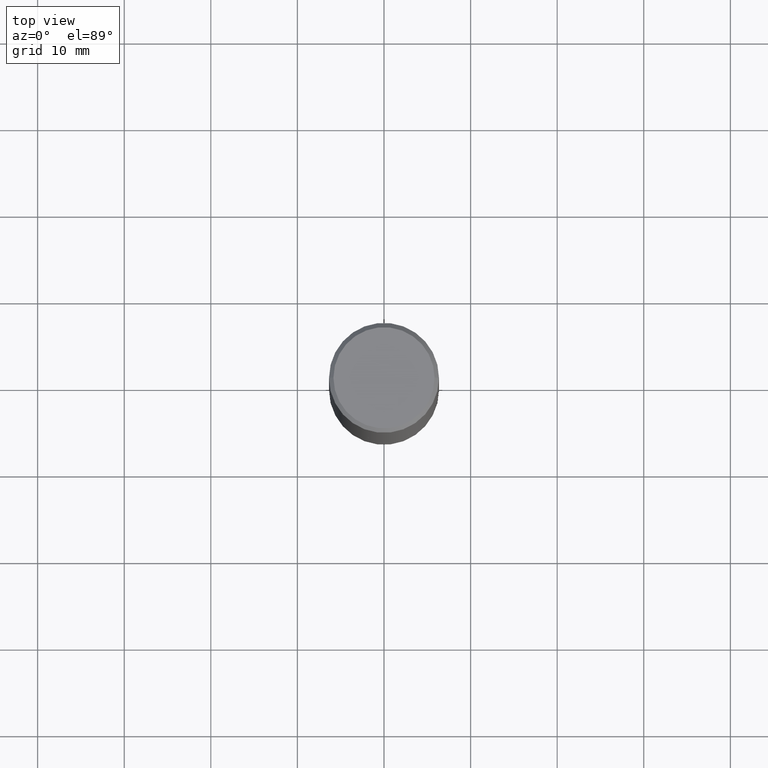
[diagram: clean part render]
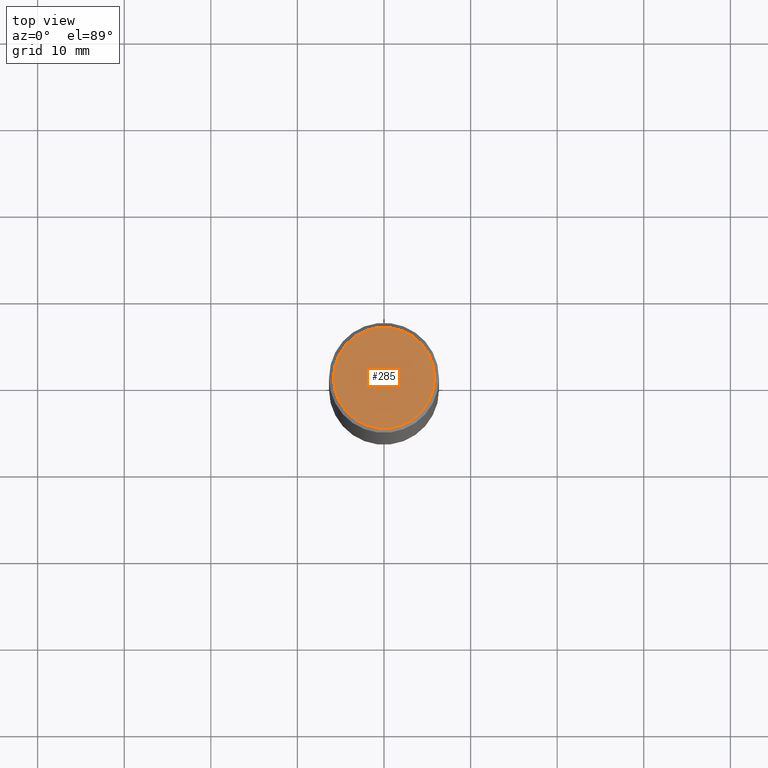
[diagram: same view with one face highlighted and labeled with its STEP entity id]
A machine part, top view. The second image highlights one B-rep face of the part: STEP entity #285.
In plain terms, the highlighted planar face has unit normal (0, -0, -1).
Its self-contained STEP definition (entity closure, byte-faithful):
#3 = DIRECTION ( 'NONE',  ( 2.438088387897960049E-29, -3.491481338843145188E-15, -1.000000000000000000 ) ) ;
#37 = AXIS2_PLACEMENT_3D ( 'NONE', #401, #292, #450 ) ;
#42 = PLANE ( 'NONE',  #453 ) ;
#68 = CIRCLE ( 'NONE', #37, 0.2299999999999993161 ) ;
#78 = EDGE_LOOP ( 'NONE', ( #468, #380 ) ) ;
#139 = CARTESIAN_POINT ( 'NONE',  ( 0.2299999999999993161, -1.681434332853594870E-15, 4.268512490111905999E-18 ) ) ;
#140 = EDGE_CURVE ( 'NONE', #415, #157, #68, .T. ) ;
#157 = VERTEX_POINT ( 'NONE', #361 ) ;
#188 = DIRECTION ( 'NONE',  ( 1.000000000000000000, -6.982962677686267499E-15, 4.876225828469323455E-29 ) ) ;
#224 = CIRCLE ( 'NONE', #294, 0.2299999999999993161 ) ;
#285 = ADVANCED_FACE ( 'NONE', ( #315 ), #42, .F. ) ;
#292 = DIRECTION ( 'NONE',  ( -2.445468806185136597E-29, 3.491481338843145583E-15, 1.000000000000000000 ) ) ;
#294 = AXIS2_PLACEMENT_3D ( 'NONE', #312, #350, #188 ) ;
#312 = CARTESIAN_POINT ( 'NONE',  ( -1.043851414335219820E-46, 1.490343170380447200E-32, 4.268512490100411279E-18 ) ) ;
#315 = FACE_OUTER_BOUND ( 'NONE', #78, .T. ) ;
#350 = DIRECTION ( 'NONE',  ( -2.445468806185136597E-29, 3.491481338843145583E-15, 1.000000000000000000 ) ) ;
#361 = CARTESIAN_POINT ( 'NONE',  ( -0.2299999999999993161, 1.640996229256267786E-15, 4.268512490089056766E-18 ) ) ;
#377 = CARTESIAN_POINT ( 'NONE',  ( 1.606081415867836334E-15, 0.2299999999999993161, -8.009064516888709120E-16 ) ) ;
#380 = ORIENTED_EDGE ( 'NONE', *, *, #140, .T. ) ;
#401 = CARTESIAN_POINT ( 'NONE',  ( -1.043851414335219820E-46, 1.490343170380447200E-32, 4.268512490100411279E-18 ) ) ;
#415 = VERTEX_POINT ( 'NONE', #139 ) ;
#450 = DIRECTION ( 'NONE',  ( 1.000000000000000000, -6.982962677686267499E-15, 4.876225828469323455E-29 ) ) ;
#453 = AXIS2_PLACEMENT_3D ( 'NONE', #377, #3, #463 ) ;
#463 = DIRECTION ( 'NONE',  ( -1.000000000000000000, 6.982962677686265922E-15, -4.876176775795935793E-29 ) ) ;
#467 = EDGE_CURVE ( 'NONE', #157, #415, #224, .T. ) ;
#468 = ORIENTED_EDGE ( 'NONE', *, *, #467, .T. ) ;